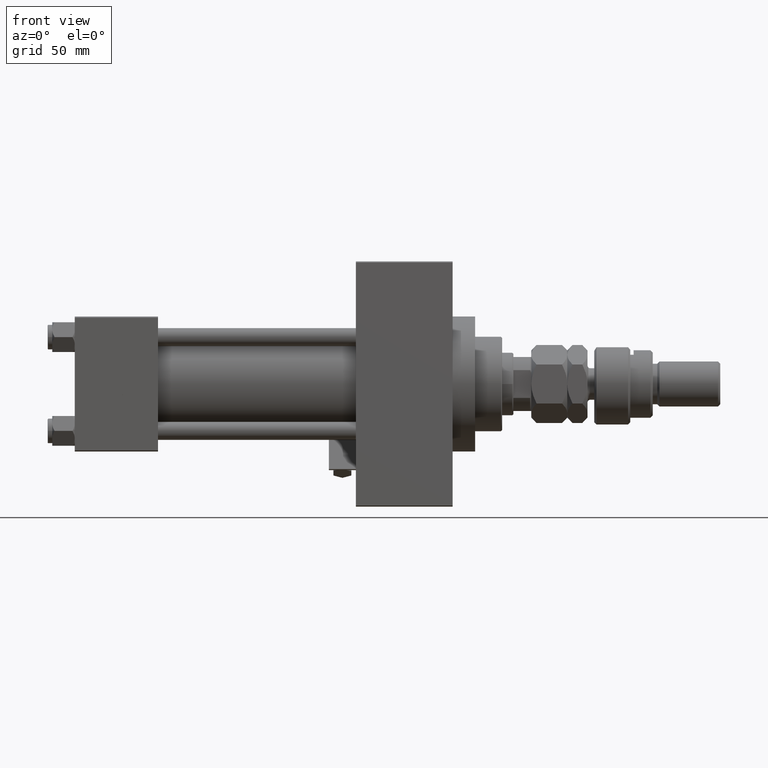
[diagram: clean part render]
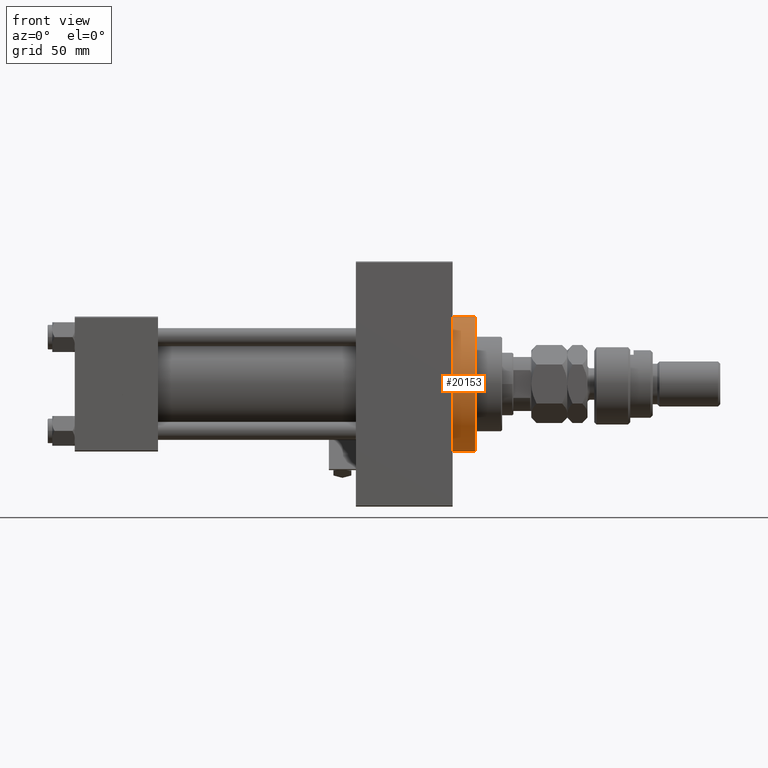
[diagram: same view with one face highlighted and labeled with its STEP entity id]
A machine part, front view. The second image highlights one B-rep face of the part: STEP entity #20153.
In plain terms, the highlighted cylindrical surface (partial cylindrical patch) has radius 30 mm, axis along (-1, -0, -0).
Its self-contained STEP definition (entity closure, byte-faithful):
#2166 = FACE_OUTER_BOUND ( 'NONE', #35369, .T. ) ;
#2271 = AXIS2_PLACEMENT_3D ( 'NONE', #4370, #20889, #44438 ) ;
#2761 = AXIS2_PLACEMENT_3D ( 'NONE', #11115, #35962, #47862 ) ;
#3341 = EDGE_CURVE ( 'NONE', #32868, #44091, #41928, .T. ) ;
#4370 = CARTESIAN_POINT ( 'NONE',  ( 167.9999999999999716, 0.000000000000000000, 0.000000000000000000 ) ) ;
#7134 = CARTESIAN_POINT ( 'NONE',  ( 167.9999999999999716, 0.000000000000000000, 0.000000000000000000 ) ) ;
#7627 = DIRECTION ( 'NONE',  ( -1.000000000000000000, -0.000000000000000000, -0.000000000000000000 ) ) ;
#8788 = ORIENTED_EDGE ( 'NONE', *, *, #53455, .T. ) ;
#10156 = CARTESIAN_POINT ( 'NONE',  ( 178.0000000000000000, 0.000000000000000000, 0.000000000000000000 ) ) ;
#10990 = CARTESIAN_POINT ( 'NONE',  ( 167.9999999999999716, -30.00000000000000000, 0.000000000000000000 ) ) ;
#11115 = CARTESIAN_POINT ( 'NONE',  ( 178.0000000000000000, 0.000000000000000000, 0.000000000000000000 ) ) ;
#12552 = VERTEX_POINT ( 'NONE', #17037 ) ;
#15718 = CIRCLE ( 'NONE', #52804, 30.00000000000000000 ) ;
#16726 = VECTOR ( 'NONE', #7627, 1000.000000000000000 ) ;
#17030 = LINE ( 'NONE', #33501, #27578 ) ;
#17037 = CARTESIAN_POINT ( 'NONE',  ( 167.9999999999999716, 0.000000000000000000, 30.00000000000000000 ) ) ;
#18689 = CYLINDRICAL_SURFACE ( 'NONE', #2761, 30.00000000000000000 ) ;
#18804 = CARTESIAN_POINT ( 'NONE',  ( 178.0000000000000000, 3.673940397442059178E-15, -30.00000000000000000 ) ) ;
#18955 = VERTEX_POINT ( 'NONE', #10990 ) ;
#20070 = ORIENTED_EDGE ( 'NONE', *, *, #3341, .F. ) ;
#20153 = ADVANCED_FACE ( 'NONE', ( #2166 ), #18689, .T. ) ;
#20345 = LINE ( 'NONE', #44382, #16726 ) ;
#20889 = DIRECTION ( 'NONE',  ( 1.000000000000000000, 0.000000000000000000, 0.000000000000000000 ) ) ;
#23622 = VERTEX_POINT ( 'NONE', #52062 ) ;
#25219 = EDGE_CURVE ( 'NONE', #32868, #12552, #20345, .T. ) ;
#26211 = ORIENTED_EDGE ( 'NONE', *, *, #44580, .F. ) ;
#27578 = VECTOR ( 'NONE', #46730, 1000.000000000000000 ) ;
#30346 = ORIENTED_EDGE ( 'NONE', *, *, #25219, .T. ) ;
#32086 = ORIENTED_EDGE ( 'NONE', *, *, #32672, .T. ) ;
#32672 = EDGE_CURVE ( 'NONE', #12552, #18955, #34244, .T. ) ;
#32868 = VERTEX_POINT ( 'NONE', #52953 ) ;
#33501 = CARTESIAN_POINT ( 'NONE',  ( 178.0000000000000000, 3.673940397442059178E-15, -30.00000000000000000 ) ) ;
#34244 = CIRCLE ( 'NONE', #2271, 30.00000000000000000 ) ;
#35369 = EDGE_LOOP ( 'NONE', ( #26211, #20070, #30346, #32086, #8788 ) ) ;
#35962 = DIRECTION ( 'NONE',  ( -1.000000000000000000, -0.000000000000000000, -0.000000000000000000 ) ) ;
#36847 = DIRECTION ( 'NONE',  ( 0.000000000000000000, 0.000000000000000000, -1.000000000000000000 ) ) ;
#40230 = AXIS2_PLACEMENT_3D ( 'NONE', #10156, #50450, #51236 ) ;
#41928 = CIRCLE ( 'NONE', #40230, 30.00000000000000000 ) ;
#44091 = VERTEX_POINT ( 'NONE', #18804 ) ;
#44382 = CARTESIAN_POINT ( 'NONE',  ( 178.0000000000000000, 0.000000000000000000, 30.00000000000000000 ) ) ;
#44438 = DIRECTION ( 'NONE',  ( 0.000000000000000000, 0.000000000000000000, -1.000000000000000000 ) ) ;
#44580 = EDGE_CURVE ( 'NONE', #44091, #23622, #17030, .T. ) ;
#44972 = DIRECTION ( 'NONE',  ( 1.000000000000000000, 0.000000000000000000, 0.000000000000000000 ) ) ;
#46730 = DIRECTION ( 'NONE',  ( -1.000000000000000000, -0.000000000000000000, -0.000000000000000000 ) ) ;
#47862 = DIRECTION ( 'NONE',  ( 0.000000000000000000, 0.000000000000000000, 1.000000000000000000 ) ) ;
#50450 = DIRECTION ( 'NONE',  ( 1.000000000000000000, 0.000000000000000000, 0.000000000000000000 ) ) ;
#51236 = DIRECTION ( 'NONE',  ( 0.000000000000000000, 0.000000000000000000, -1.000000000000000000 ) ) ;
#52062 = CARTESIAN_POINT ( 'NONE',  ( 167.9999999999999716, 3.673940397442059178E-15, -30.00000000000000000 ) ) ;
#52804 = AXIS2_PLACEMENT_3D ( 'NONE', #7134, #44972, #36847 ) ;
#52953 = CARTESIAN_POINT ( 'NONE',  ( 178.0000000000000000, 0.000000000000000000, 30.00000000000000000 ) ) ;
#53455 = EDGE_CURVE ( 'NONE', #18955, #23622, #15718, .T. ) ;